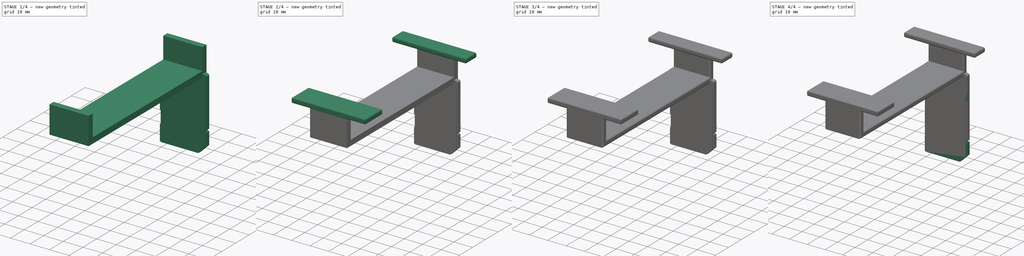
[diagram: build sequence overview — one tinted view per stage of 4, left to right]
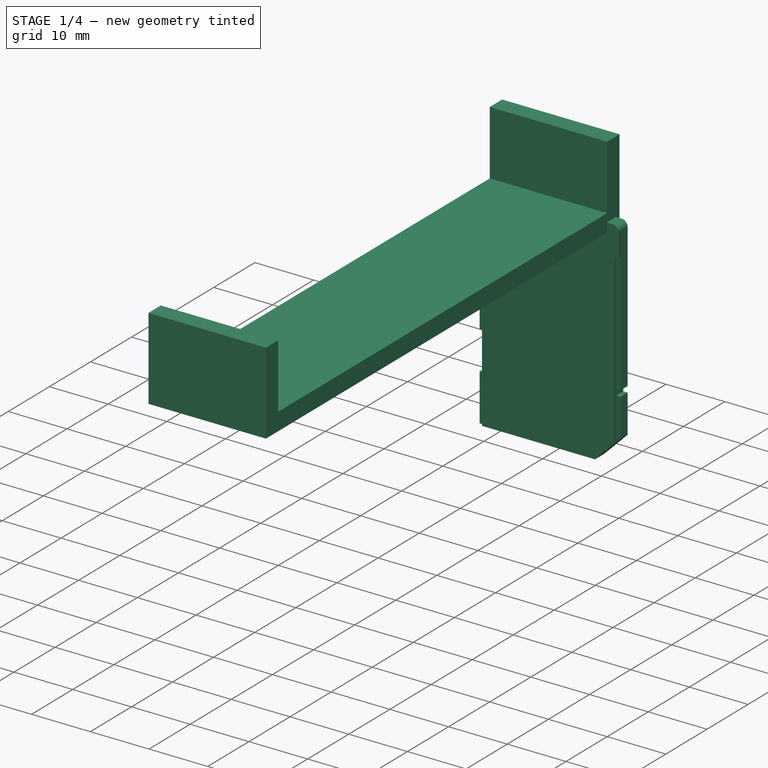
[diagram: stage 1 of 4 — iso view after this stage's code; geometry added in this stage tinted green]
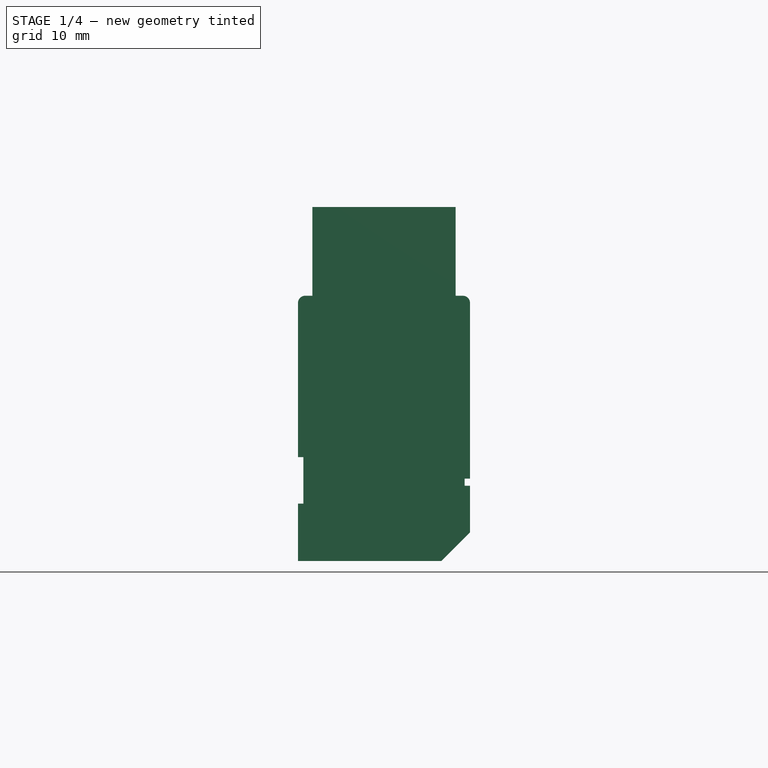
[diagram: stage 1 of 4 — front view after this stage's code; geometry added in this stage tinted green]
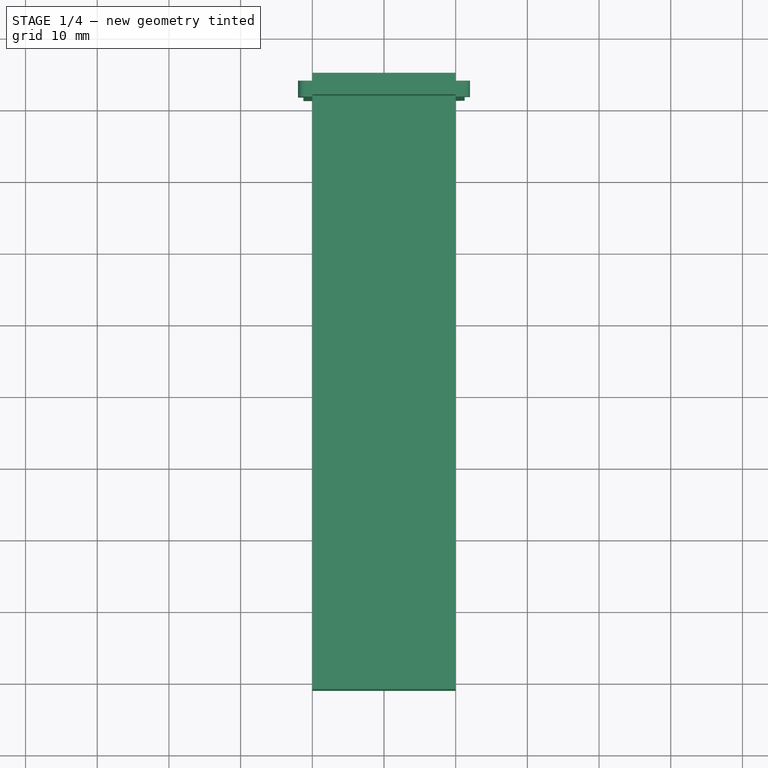
[diagram: stage 1 of 4 — top view after this stage's code; geometry added in this stage tinted green]
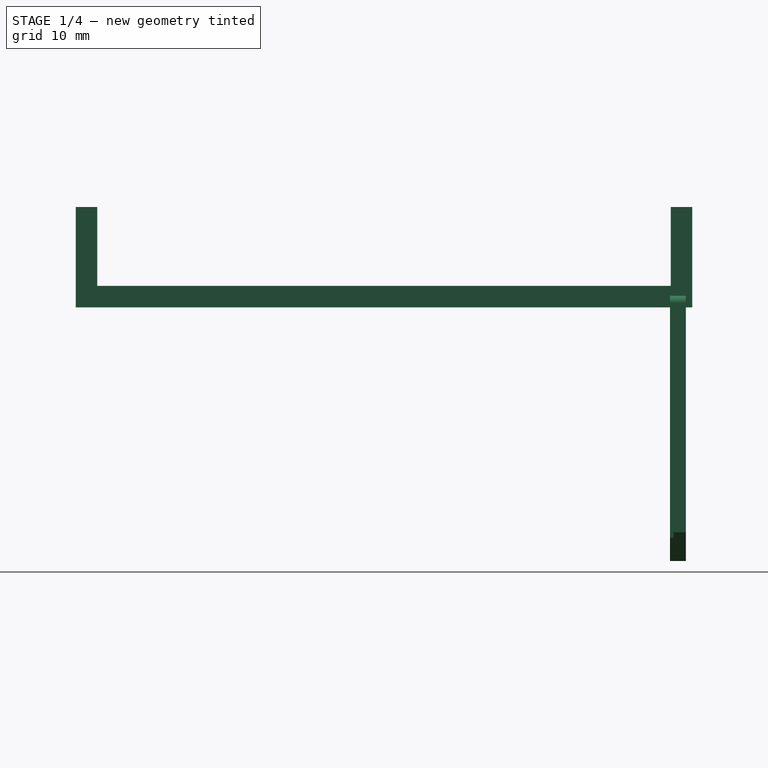
[diagram: stage 1 of 4 — right view after this stage's code; geometry added in this stage tinted green]
FCSTD DOCUMENT  (FreeCAD 0.16R)
Label: xiaomi coche Final
License: All rights reserved
LicenseURL: http://en.wikipedia.org/wiki/All_rights_reserved
objects: Sketcher::SketchObject×6, PartDesign::Pad×4, PartDesign::Fillet×4, Part::Feature×3, PartDesign::Pocket×2, Part::MultiFuse×1
note: 26 computed .brp shape members not serialized (recipe doc carries the construction recipe); baked Part::Feature solids carry a one-line shape summary decoded from their .brp

FEATURE [Part::Feature] Pocket002
  Placement = pos=(0,0.0337272,-11.6015) rot=(1,0,0;3.14159rad)
  shape: bbox 24 x 2.22 x 32 mm, 7 faces (baked)
FEATURE [Sketcher::SketchObject] Sketch001
  sketch-geometry (4):
    g0: LineSegment StartX=-10 StartY=-35.5682 StartZ=0 EndX=10 EndY=-35.5682 EndZ=0
    g1: LineSegment StartX=10 StartY=-35.5682 StartZ=0 EndX=10 EndY=-121.568 EndZ=0
    g2: LineSegment StartX=10 StartY=-121.568 StartZ=0 EndX=-10 EndY=-121.568 EndZ=0
    g3: LineSegment StartX=-10 StartY=-121.568 StartZ=0 EndX=-10 EndY=-35.5682 EndZ=0
  constraints (11):
    c: Coincident(g0,g1)
    c: Coincident(g1,g2)
    c: Coincident(g2,g3)
    c: Coincident(g3,g0)
    c: Horizontal(g0)
    c: Horizontal(g2)
    c: Vertical(g1)
    c: Vertical(g3)
    c: Symmetric(g2,g1,g-2)
    c: DistanceX(g0,g0) = 20
    c: DistanceY(g1,g1) = 86
FEATURE [PartDesign::Pad] Pad001
  Length = 3
  Length2 = 100
  Sketch = -> Sketch001
  Type = 0
FEATURE [Sketcher::SketchObject] Sketch002
  ExternalGeometry = -> [Pad001]
  Placement = pos=(0,0,3) rot=(0,0,1;0rad)
  Support = -> Pad001 [Face6]
  sketch-geometry (8):
    g0: LineSegment StartX=-10 StartY=-118.568 StartZ=0 EndX=10 EndY=-118.568 EndZ=0
    g1: LineSegment StartX=10 StartY=-118.568 StartZ=0 EndX=10 EndY=-121.568 EndZ=0
    g2: LineSegment StartX=10 StartY=-121.568 StartZ=0 EndX=-10 EndY=-121.568 EndZ=0
    g3: LineSegment StartX=-10 StartY=-121.568 StartZ=0 EndX=-10 EndY=-118.568 EndZ=0
    g4: LineSegment StartX=-10 StartY=-35.5682 StartZ=0 EndX=10 EndY=-35.5682 EndZ=0
    g5: LineSegment StartX=10 StartY=-35.5682 StartZ=0 EndX=10 EndY=-38.5682 EndZ=0
    g6: LineSegment StartX=10 StartY=-38.5682 StartZ=0 EndX=-10 EndY=-38.5682 EndZ=0
    g7: LineSegment StartX=-10 StartY=-38.5682 StartZ=0 EndX=-10 EndY=-35.5682 EndZ=0
  constraints (16):
    c: Horizontal(g0)
    c: Horizontal(g2)
    c: Vertical(g1)
    c: Vertical(g3)
    c: Horizontal(g4)
    c: Horizontal(g6)
    c: Vertical(g5)
    c: Vertical(g7)
    c: DistanceY(g2,g0) = 3
    c: DistanceY(g6,g4) = 3
    c: Coincident(g1,g2)
    c: Coincident(g1,g-4)
    c: Coincident(g0,g1)
    c: Coincident(g2,g3)
    c: Coincident(g2,g-4)
    c: Coincident(g0,g3)
FEATURE [PartDesign::Pad] Pad002
  Length = 11
  Length2 = 100
  Sketch = -> Sketch002
  Type = 0
FEATURE [PartDesign::Fillet] Fillet003
  Base = -> Pad005 [Edge4,Edge2]
  Placement = pos=(0,0.0337272,-3.38484) rot=(1,0,0;3.14159rad)
  Radius = 1
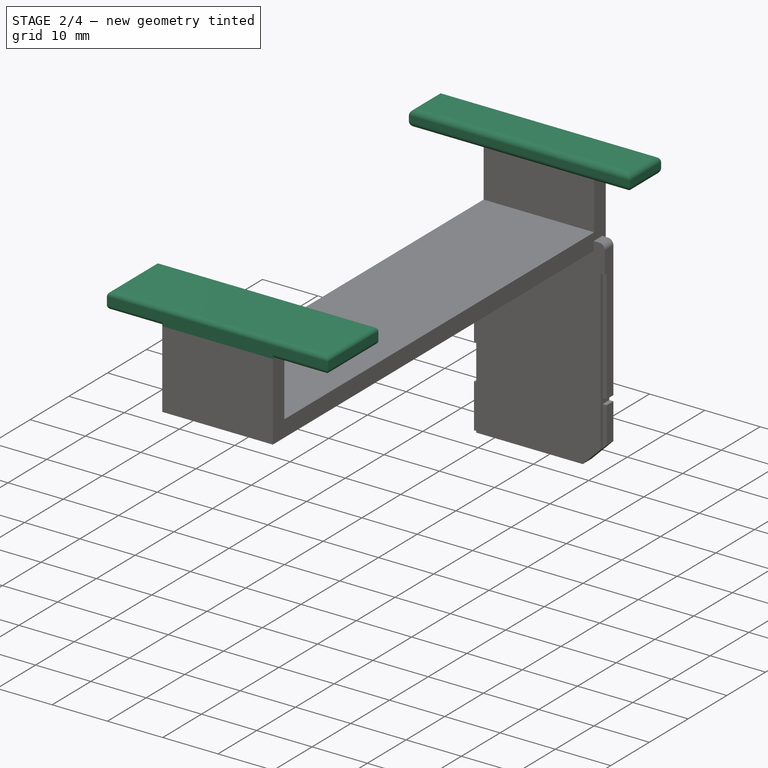
[diagram: stage 2 of 4 — iso view after this stage's code; geometry added in this stage tinted green]
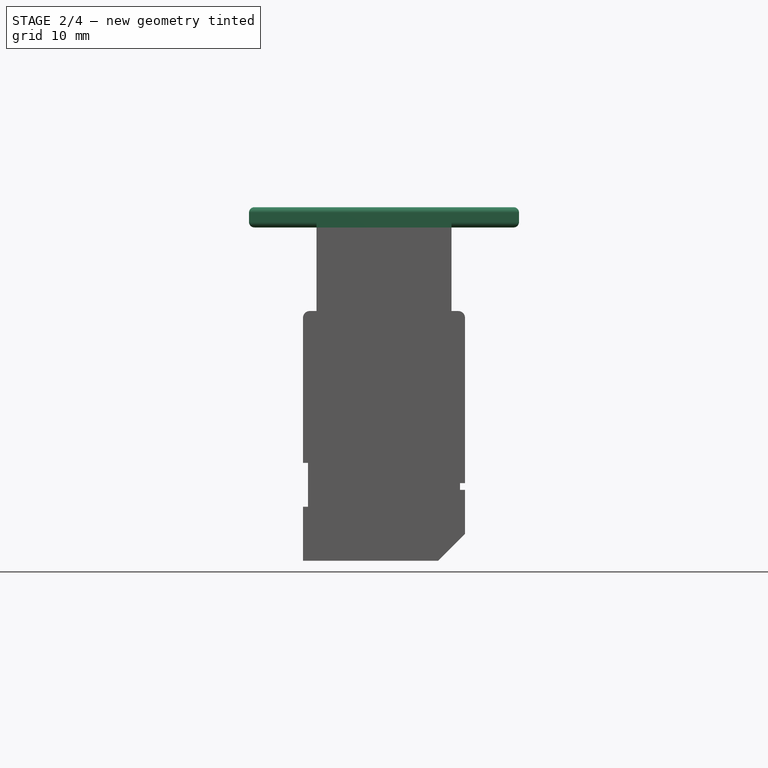
[diagram: stage 2 of 4 — front view after this stage's code; geometry added in this stage tinted green]
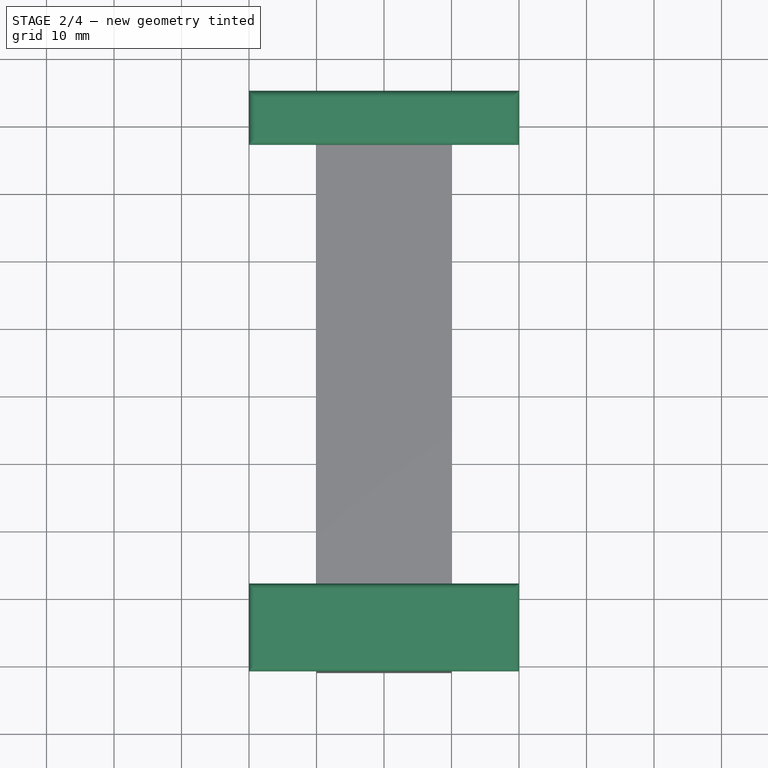
[diagram: stage 2 of 4 — top view after this stage's code; geometry added in this stage tinted green]
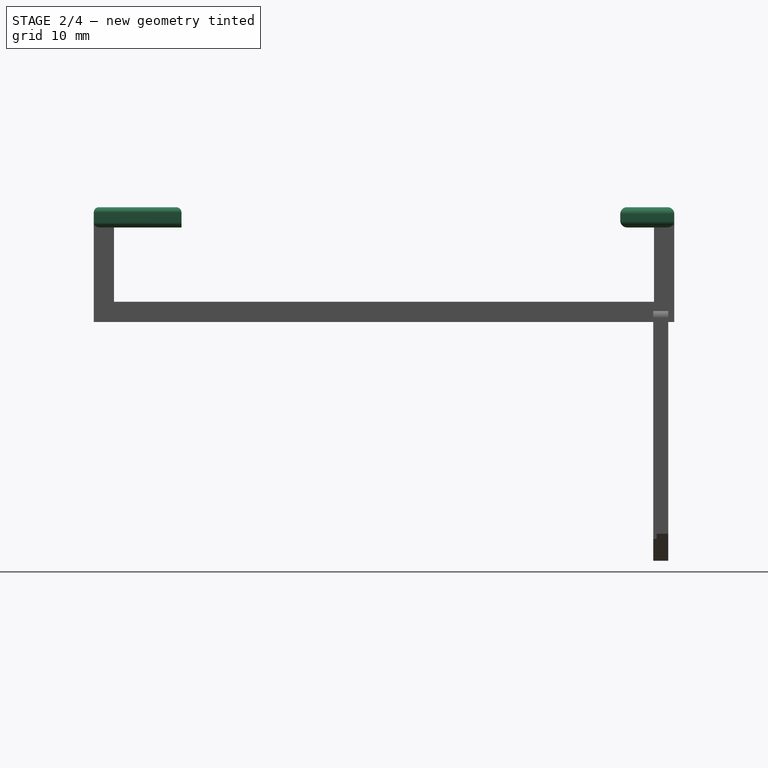
[diagram: stage 2 of 4 — right view after this stage's code; geometry added in this stage tinted green]
FEATURE [Sketcher::SketchObject] Sketch003
  ExternalGeometry = -> [Pad002]
  Placement = pos=(0,0,14) rot=(0,0,1;0rad)
  Support = -> Pad002 [Face3]
  sketch-geometry (8):
    g0: LineSegment StartX=-20 StartY=-35.5682 StartZ=0 EndX=20 EndY=-35.5682 EndZ=0
    g1: LineSegment StartX=20 StartY=-35.5682 StartZ=0 EndX=20 EndY=-43.5682 EndZ=0
    g2: LineSegment StartX=20 StartY=-43.5682 StartZ=0 EndX=-20 EndY=-43.5682 EndZ=0
    g3: LineSegment StartX=-20 StartY=-43.5682 StartZ=0 EndX=-20 EndY=-35.5682 EndZ=0
    g4: LineSegment StartX=-20 StartY=-108.568 StartZ=0 EndX=20 EndY=-108.568 EndZ=0
    g5: LineSegment StartX=20 StartY=-108.568 StartZ=0 EndX=20 EndY=-121.568 EndZ=0
    g6: LineSegment StartX=20 StartY=-121.568 StartZ=0 EndX=-20 EndY=-121.568 EndZ=0
    g7: LineSegment StartX=-20 StartY=-121.568 StartZ=0 EndX=-20 EndY=-108.568 EndZ=0
  constraints (24):
    c: Coincident(g0,g1)
    c: Coincident(g1,g2)
    c: Coincident(g2,g3)
    c: Coincident(g3,g0)
    c: Horizontal(g0)
    c: Horizontal(g2)
    c: Vertical(g1)
    c: Vertical(g3)
    c: Coincident(g4,g5)
    c: Coincident(g5,g6)
    c: Coincident(g6,g7)
    c: Coincident(g7,g4)
    c: Horizontal(g4)
    c: Horizontal(g6)
    c: Vertical(g5)
    c: Vertical(g7)
    c: Symmetric(g5,g6,g-2)
    c: Symmetric(g0,g0,g-2)
    c: PointOnObject(g-3,g0)
    c: PointOnObject(g-4,g6)
    c: DistanceX(g4,g4) = 40
    c: DistanceX(g2,g2) = 40
    c: DistanceY(g5,g5) = 13
    c: DistanceY(g1,g1) = 8
FEATURE [PartDesign::Pad] Pad003
  Length = 3
  Length2 = 100
  Sketch = -> Sketch003
  Type = 0
FEATURE [PartDesign::Fillet] Fillet
  Base = -> Pad003 [Edge44,Edge29,Edge46,Edge42,Edge48,Edge32,Edge31,Edge30]
  Radius = 0.8
FEATURE [PartDesign::Fillet] Fillet001
  Base = -> Fillet [Edge60,Edge62,Edge43,Edge63,Edge40,Edge35,Edge37,Edge38,Edge39]
  Radius = 1
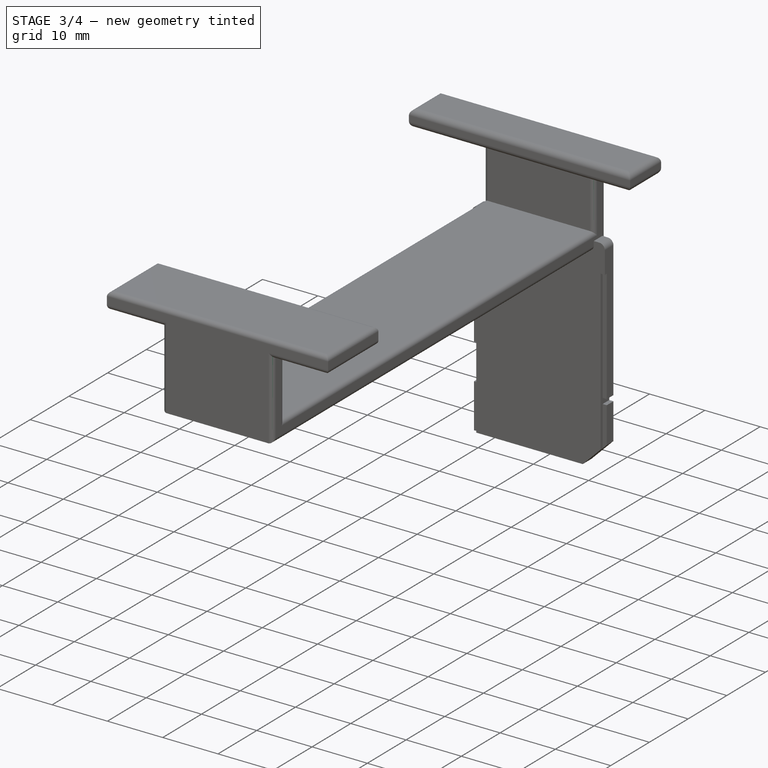
[diagram: stage 3 of 4 — iso view after this stage's code; geometry added in this stage tinted green]
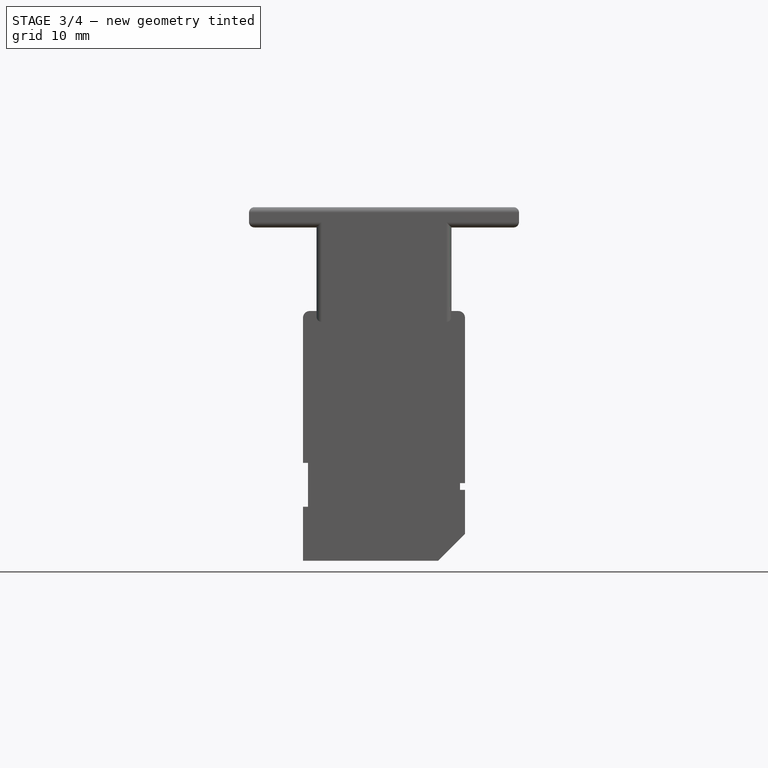
[diagram: stage 3 of 4 — front view after this stage's code; geometry added in this stage tinted green]
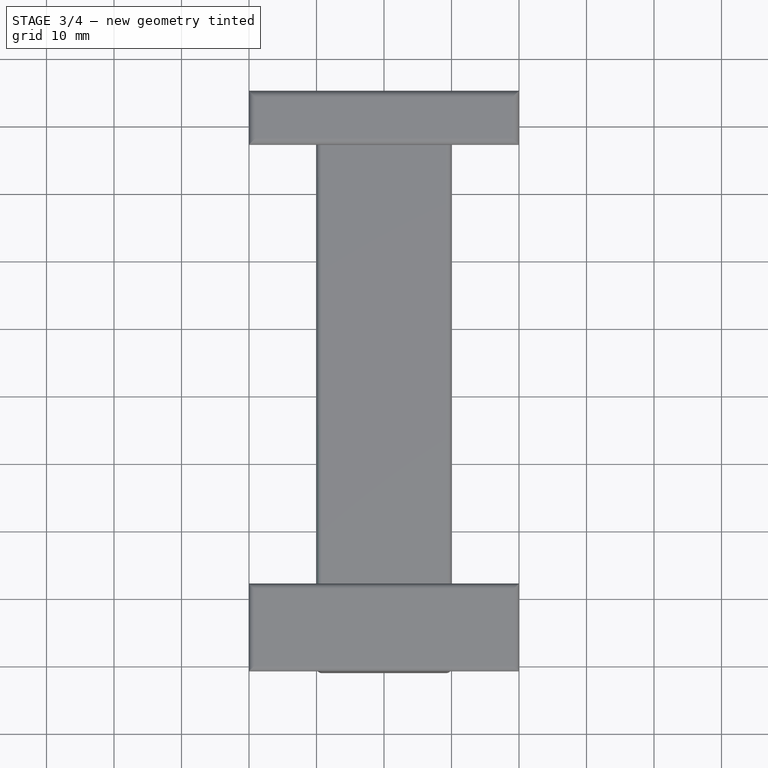
[diagram: stage 3 of 4 — top view after this stage's code; geometry added in this stage tinted green]
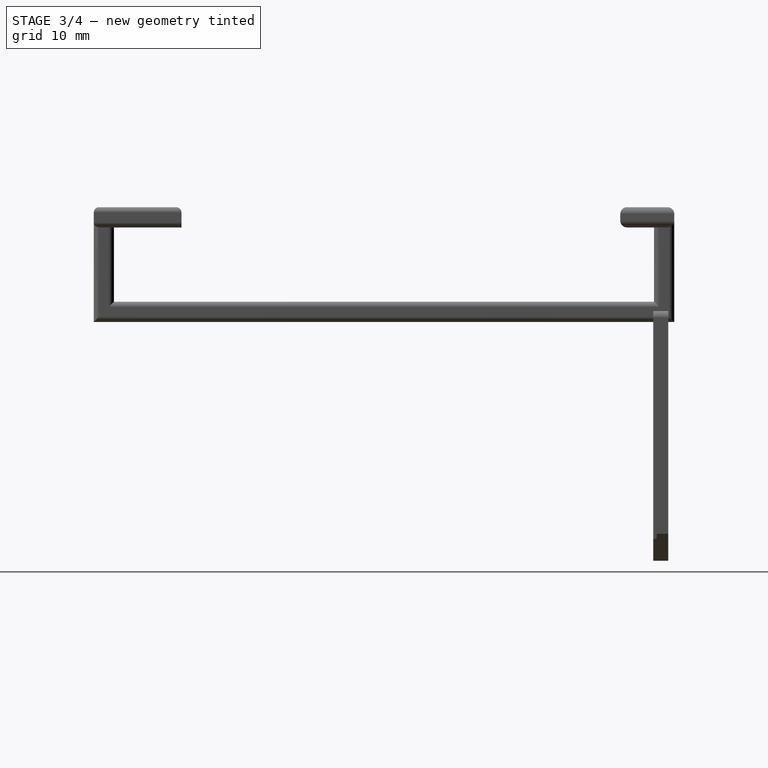
[diagram: stage 3 of 4 — right view after this stage's code; geometry added in this stage tinted green]
FEATURE [Part::Feature] Pad004
  Placement = pos=(0,0.0337272,-5) rot=(1,0,0;3.14159rad)
  shape: bbox 24 x 2.22 x 37 mm, 21 faces (baked)
FEATURE [Part::Feature] Pad005
  Placement = pos=(0,0.0337272,-3.38484) rot=(1,0,0;3.14159rad)
  shape: bbox 24 x 2.22 x 37 mm, 21 faces (baked)
FEATURE [PartDesign::Fillet] Fillet002
  Base = -> Fillet001 [Edge33,Edge49,Edge32,Edge36,Edge23,Edge29,Edge10,Edge7,Edge5,Edge8,Edge6,Edge3]
  Radius = 0.8
FEATURE [Part::MultiFuse] Fusion  label="Soporte + tarjeta"
  Shapes = -> [Fillet003,Fillet002]
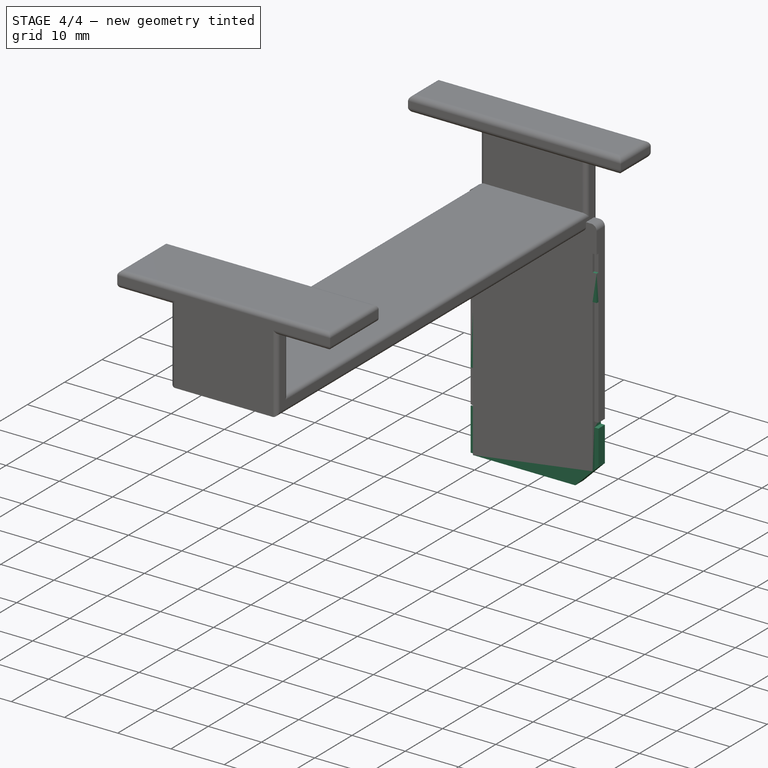
[diagram: stage 4 of 4 — iso view after this stage's code; geometry added in this stage tinted green]
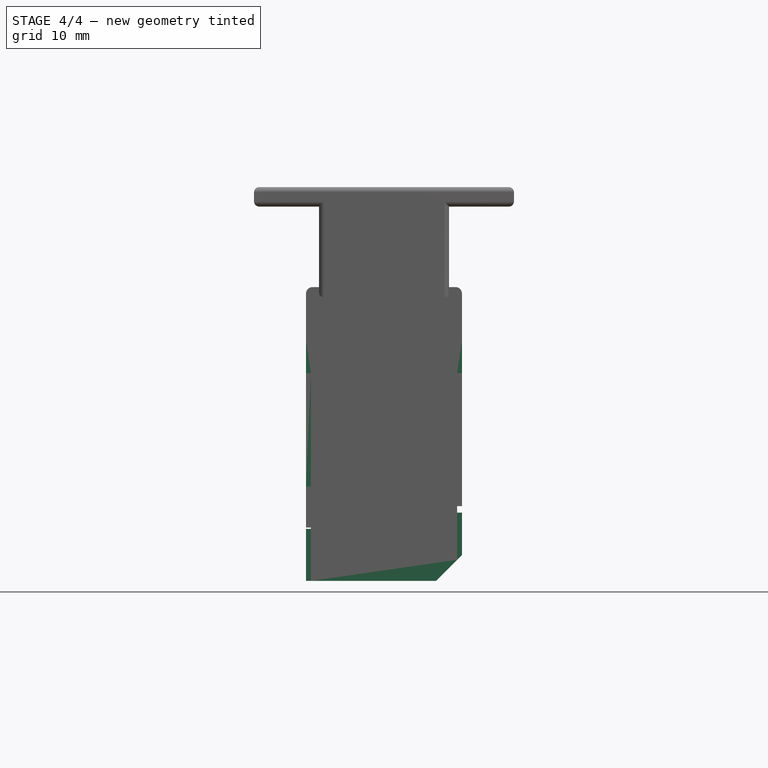
[diagram: stage 4 of 4 — front view after this stage's code; geometry added in this stage tinted green]
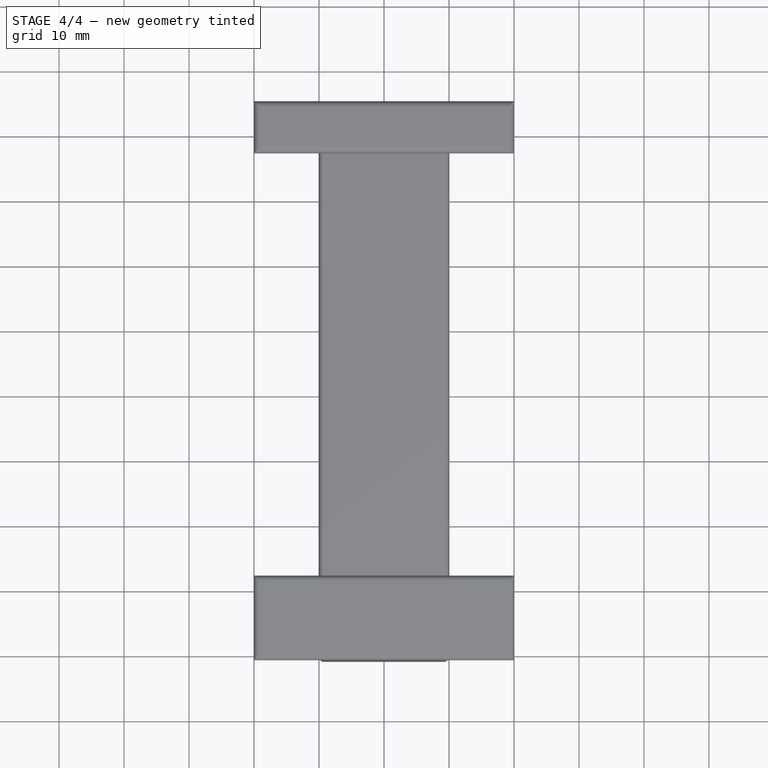
[diagram: stage 4 of 4 — top view after this stage's code; geometry added in this stage tinted green]
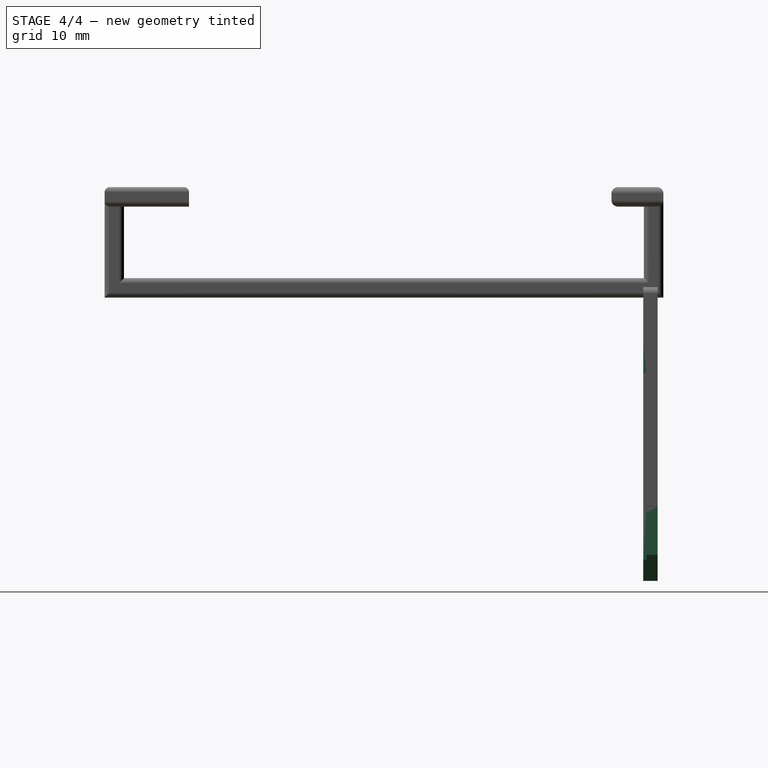
[diagram: stage 4 of 4 — right view after this stage's code; geometry added in this stage tinted green]
FEATURE [Sketcher::SketchObject] Sketch
  ExternalGeometry = -> [Pocket002]
  Placement = pos=(0,-38.6737,-11.6015) rot=(0,-0.707107,0.707107;3.14159rad)
  Support = -> Pocket002 [Face1]
  sketch-geometry (8):
    g0: LineSegment StartX=-11.25 StartY=32.2093 StartZ=0 EndX=-14.1803 EndY=32.2093 EndZ=0
    g1: LineSegment StartX=-14.1803 StartY=32.2093 StartZ=0 EndX=-14.1803 EndY=-3.22464 EndZ=0
    g2: LineSegment StartX=-14.1803 StartY=-3.22464 StartZ=0 EndX=-11.25 EndY=-3.22464 EndZ=0
    g3: LineSegment StartX=-11.25 StartY=-3.22464 StartZ=0 EndX=-11.25 EndY=32.2093 EndZ=0
    g4: LineSegment StartX=11.25 StartY=-4.07506 StartZ=0 EndX=16.0094 EndY=-4.07506 EndZ=0
    g5: LineSegment StartX=16.0094 StartY=-4.07506 StartZ=0 EndX=16.0094 EndY=34.0518 EndZ=0
    g6: LineSegment StartX=16.0094 StartY=34.0518 StartZ=0 EndX=11.25 EndY=34.0518 EndZ=0
    g7: LineSegment StartX=11.25 StartY=34.0518 StartZ=0 EndX=11.25 EndY=-4.07506 EndZ=0
  constraints (18):
    c: Coincident(g0,g1)
    c: Coincident(g1,g2)
    c: Coincident(g2,g3)
    c: Coincident(g3,g0)
    c: Horizontal(g0)
    c: Horizontal(g2)
    c: Vertical(g1)
    c: Vertical(g3)
    c: Coincident(g4,g5)
    c: Coincident(g5,g6)
    c: Coincident(g6,g7)
    c: Coincident(g7,g4)
    c: Horizontal(g4)
    c: Horizontal(g6)
    c: Vertical(g5)
    c: Vertical(g7)
    c: DistanceX(g6,g-3) = 0.75
    c: DistanceX(g-4,g0) = 0.75
FEATURE [PartDesign::Pocket] Pocket
  Length = 0.5
  Placement = pos=(0,0.0337272,-11.6015) rot=(1,0,0;3.14159rad)
  Sketch = -> Sketch
  Type = 0
FEATURE [Sketcher::SketchObject] Sketch004
  ExternalGeometry = -> [Pocket]
  Placement = pos=(0,-38.1737,-11.6015) rot=(0,0.707107,-0.707107;3.14159rad)
  Support = -> Pocket [Face11]
  sketch-geometry (8):
    g0: LineSegment StartX=11.25 StartY=24 StartZ=0 EndX=14.7315 EndY=24 EndZ=0
    g1: LineSegment StartX=14.7315 StartY=24 StartZ=0 EndX=14.7315 EndY=17.5 EndZ=0
    g2: LineSegment StartX=14.7315 StartY=17.5 StartZ=0 EndX=11.25 EndY=17.5 EndZ=0
    g3: LineSegment StartX=11.25 StartY=17.5 StartZ=0 EndX=11.25 EndY=24 EndZ=0
    g4: LineSegment StartX=-13.2904 StartY=21.5 StartZ=0 EndX=-11.25 EndY=21.5 EndZ=0
    g5: LineSegment StartX=-11.25 StartY=21.5 StartZ=0 EndX=-11.25 EndY=20.5 EndZ=0
    g6: LineSegment StartX=-11.25 StartY=20.5 StartZ=0 EndX=-13.2904 EndY=20.5 EndZ=0
    g7: LineSegment StartX=-13.2904 StartY=20.5 StartZ=0 EndX=-13.2904 EndY=21.5 EndZ=0
  constraints (22):
    c: Coincident(g0,g1)
    c: Coincident(g1,g2)
    c: Coincident(g2,g3)
    c: Coincident(g3,g0)
    c: Horizontal(g0)
    c: Horizontal(g2)
    c: Vertical(g1)
    c: Vertical(g3)
    c: PointOnObject(g0,g-5)
    c: Coincident(g4,g5)
    c: Coincident(g5,g6)
    c: Coincident(g6,g7)
    c: Coincident(g7,g4)
    c: Horizontal(g4)
    c: Horizontal(g6)
    c: Vertical(g5)
    c: Vertical(g7)
    c: PointOnObject(g5,g-6)
    c: DistanceY(g-5,g1) = 17.5
    c: DistanceY(g-6,g6) = 20.5
    c: DistanceY(g0,g-3) = 8
    c: DistanceY(g4,g-4) = 6.5
FEATURE [PartDesign::Pocket] Pocket003
  Length = 5
  Placement = pos=(0,0.0337272,-11.6015) rot=(1,0,0;3.14159rad)
  Sketch = -> Sketch004
  Type = 0
FEATURE [Sketcher::SketchObject] Sketch005
  ExternalGeometry = -> [Pocket003]
  Placement = pos=(0,0.0337272,-11.6015) rot=(0,0,1;0rad)
  Support = -> Pocket003 [Face2]
  sketch-geometry (4):
    g0: LineSegment StartX=-12 StartY=-36.4875 StartZ=0 EndX=12 EndY=-36.4875 EndZ=0
    g1: LineSegment StartX=12 StartY=-36.4875 StartZ=0 EndX=12 EndY=-38.7075 EndZ=0
    g2: LineSegment StartX=12 StartY=-38.7075 StartZ=0 EndX=-12 EndY=-38.7075 EndZ=0
    g3: LineSegment StartX=-12 StartY=-38.7075 StartZ=0 EndX=-12 EndY=-36.4875 EndZ=0
  constraints (12):
    c: Coincident(g0,g1)
    c: Coincident(g1,g2)
    c: Coincident(g2,g3)
    c: Coincident(g3,g0)
    c: Horizontal(g0)
    c: Horizontal(g2)
    c: Vertical(g1)
    c: Vertical(g3)
    c: PointOnObject(g-3,g0)
    c: PointOnObject(g-4,g2)
    c: Symmetric(g1,g2,g-2)
    c: Coincident(g0,g-3)
FEATURE [PartDesign::Pad] Pad
  Length = 5
  Length2 = 100
  Placement = pos=(0,0.0337272,-11.6015) rot=(1,0,0;3.14159rad)
  Sketch = -> Sketch005
  Type = 0
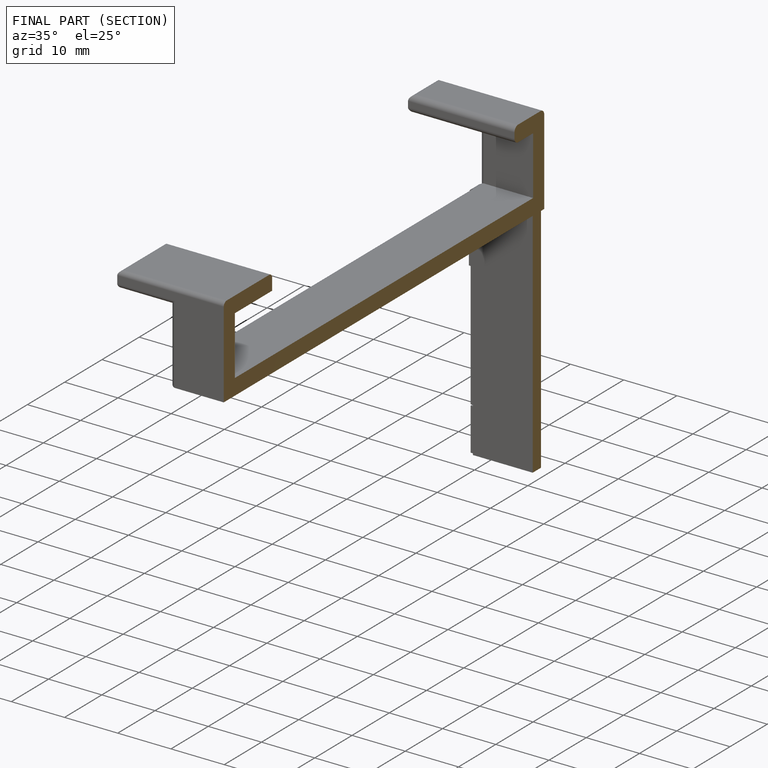
[diagram: finished part — half-section view (interior)]
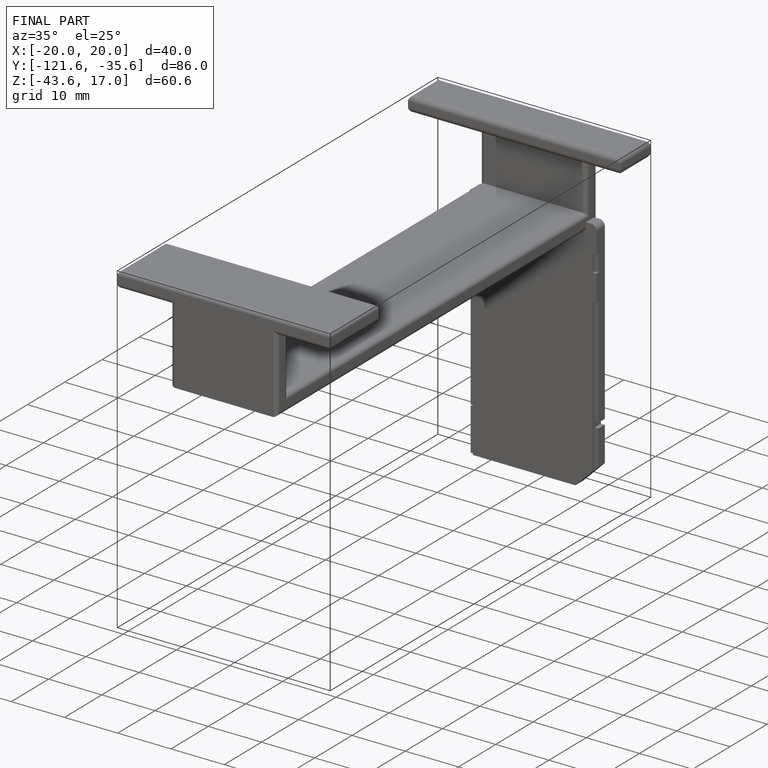
[diagram: finished part — iso view with bounding-box wireframe]
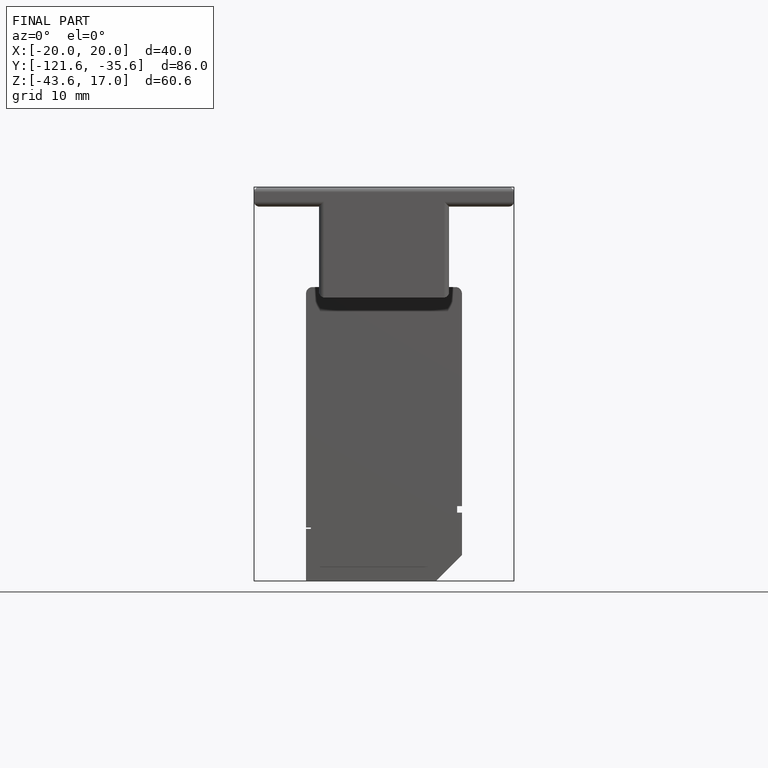
[diagram: finished part — front view with bounding-box wireframe]
